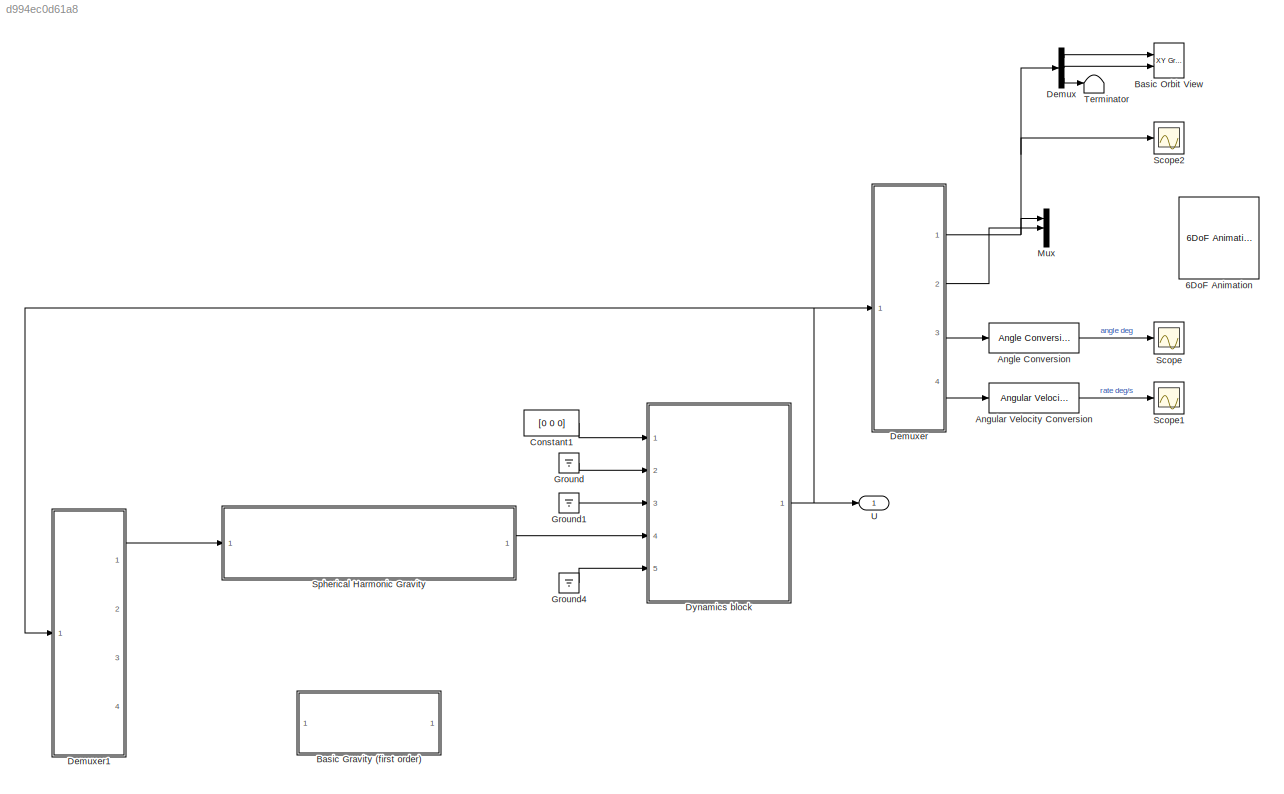
MODEL slx_d994ec0d61a8
KIND model
CONFIG AbsTol = auto
CONFIG EnableMultiTasking = off
CONFIG FixedStep = 10
CONFIG MaxStep = auto
CONFIG MinStep = auto
CONFIG RelTol = 1e-3
CONFIG SampleTimeConstraint = Unconstrained
CONFIG Solver = VariableStepAuto
CONFIG SolverName = VariableStepAuto
CONFIG StartTime = 0.0
CONFIG StopTime = 50000
WORKSPACE source: mxarray member
WORKSPACE Inertia = 1
BLOCK [Reference] 6DoF Animation  REF=aerolibanim/6DoF Animation
  Commented = on
  Ports = [2]
  SourceBlock = aerolibanim/6DoF Animation
  SourceProductBaseCode = AE
  SourceProductName = Aerospace Blockset
  SourceType = 6DoF_Animation
BLOCK [Reference] Angle Conversion  REF=aerolibconvert2/Angle Conversion
  Ports = [1, 1]
  SourceBlock = aerolibconvert2/Angle Conversion
  SourceProductBaseCode = AE
  SourceProductName = Aerospace Blockset
  SourceType = Angle Conversion
BLOCK [Reference] Angular Velocity Conversion  REF=aerolibconvert2/Angular Velocity
Conversion
  Ports = [1, 1]
  SourceBlock = aerolibconvert2/Angular Velocity\nConversion
  SourceProductBaseCode = AE
  SourceProductName = Aerospace Blockset
  SourceType = Angular Velocity Conversion
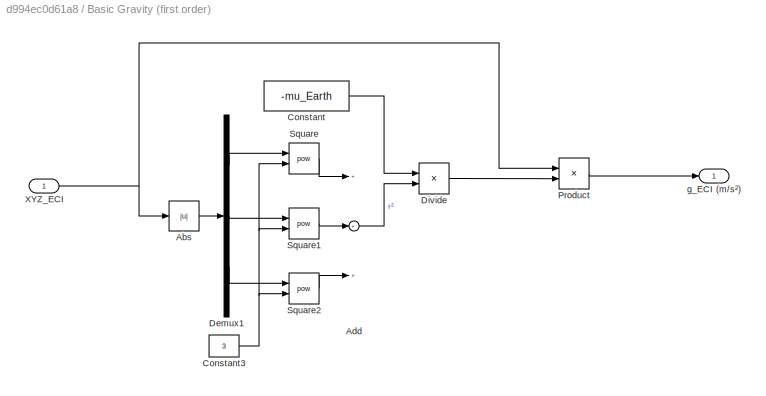
BLOCK [SubSystem] Basic Gravity (first order)
  Commented = on
  Ports = [1, 1]
  RequestExecContextInheritance = off
BLOCK [Abs] Basic Gravity (first order)/Abs
  SaturateOnIntegerOverflow = off
BLOCK [Sum] Basic Gravity (first order)/Add
  InputSameDT = off
  Inputs = +++
  OutDataTypeStr = Inherit: Inherit via internal rule
  Ports = [3, 1]
  SaturateOnIntegerOverflow = off
BLOCK [Constant] Basic Gravity (first order)/Constant
  Value = -mu_Earth
BLOCK [Constant] Basic Gravity (first order)/Constant3
  Value = 3
BLOCK [Demux] Basic Gravity (first order)/Demux1
  DisplayOption = bar
  Outputs = 3
  Ports = [1, 3]
BLOCK [Product] Basic Gravity (first order)/Divide
  InputSameDT = off
  Inputs = */
  OutDataTypeStr = Inherit: Inherit via internal rule
  Ports = [2, 1]
  RndMeth = Floor
  SaturateOnIntegerOverflow = off
BLOCK [Product] Basic Gravity (first order)/Product
  InputSameDT = off
  OutDataTypeStr = Inherit: Inherit via internal rule
  Ports = [2, 1]
  RndMeth = Floor
  SaturateOnIntegerOverflow = off
BLOCK [Math] Basic Gravity (first order)/Square
  Operator = pow
  Ports = [2, 1]
  SignedPower = off
BLOCK [Math] Basic Gravity (first order)/Square1
  Operator = pow
  Ports = [2, 1]
  SignedPower = off
BLOCK [Math] Basic Gravity (first order)/Square2
  Operator = pow
  Ports = [2, 1]
  SignedPower = off
BLOCK [Inport] Basic Gravity (first order)/XYZ_ECI
  IconDisplay = Port number
BLOCK [Outport] Basic Gravity (first order)/g_ECI (m//s²)
  IconDisplay = Port number
BLOCK [Reference] Basic Orbit View  REF=simulink/Sinks/XY Graph
  Ports = [2]
  SourceBlock = simulink/Sinks/XY Graph
  SourceProductBaseCode = SL
  SourceProductName = Simulink
  SourceType = XY scope.
BLOCK [Constant] Constant1
  Value = [0 0 0]
BLOCK [Demux] Demux
  DisplayOption = bar
  Outputs = 3
  Ports = [1, 3]
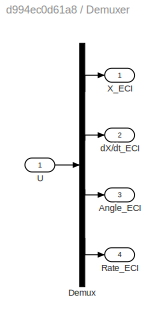
BLOCK [SubSystem] Demuxer
  Ports = [1, 4]
  RequestExecContextInheritance = off
BLOCK [Outport] Demuxer/Angle_ECI
  IconDisplay = Port number
  Port = 3
BLOCK [Demux] Demuxer/Demux
  DisplayOption = bar
  Ports = [1, 4]
BLOCK [Outport] Demuxer/Rate_ECI
  IconDisplay = Port number
  Port = 4
BLOCK [Inport] Demuxer/U
  IconDisplay = Port number
BLOCK [Outport] Demuxer/X_ECI
  IconDisplay = Port number
BLOCK [Outport] Demuxer/dX//dt_ECI
  IconDisplay = Port number
  Port = 2
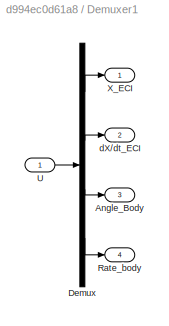
BLOCK [SubSystem] Demuxer1
  Ports = [1, 4]
  RequestExecContextInheritance = off
BLOCK [Outport] Demuxer1/Angle_Body
  IconDisplay = Port number
  Port = 3
BLOCK [Demux] Demuxer1/Demux
  DisplayOption = bar
  Ports = [1, 4]
BLOCK [Outport] Demuxer1/Rate_body
  IconDisplay = Port number
  Port = 4
BLOCK [Inport] Demuxer1/U
  IconDisplay = Port number
BLOCK [Outport] Demuxer1/X_ECI
  IconDisplay = Port number
BLOCK [Outport] Demuxer1/dX//dt_ECI
  IconDisplay = Port number
  Port = 2
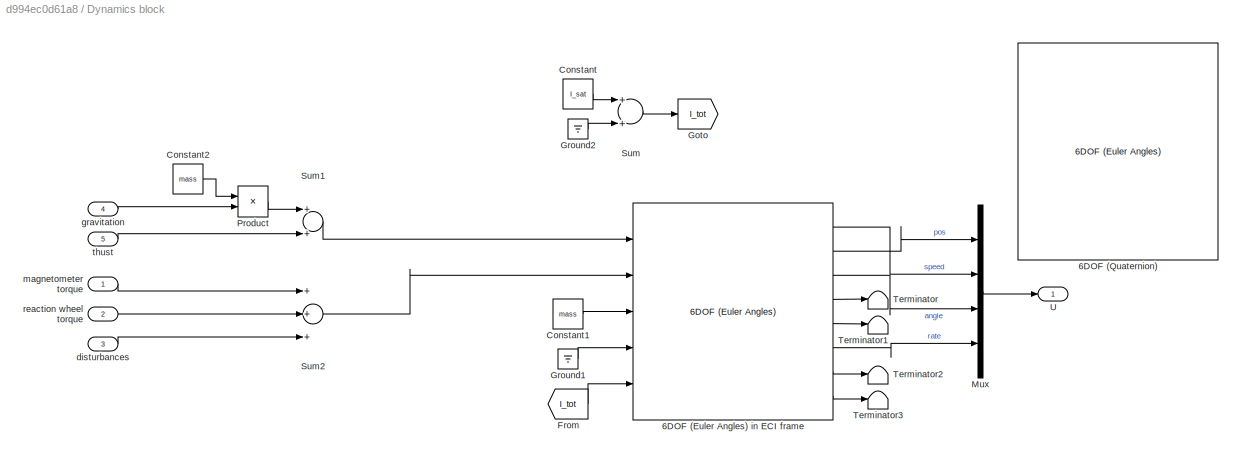
BLOCK [SubSystem] Dynamics block
  Ports = [5, 1]
  RequestExecContextInheritance = off
BLOCK [Reference] Dynamics block/6DOF (Euler Angles) in ECI frame  REF=shared6dof/6DOF (Euler Angles)
  Ports = [5, 8]
  SourceBlock = shared6dof/6DOF (Euler Angles)
  SourceProductBaseCode = AE
  SourceProductName = Aerospace Blockset
  SourceType = 6DOF EoM (Body Axis)
BLOCK [Reference] Dynamics block/6DOF (Quaternion)  REF=shared6dof/6DOF (Euler Angles)
  Commented = on
  Ports = [5, 8]
  SourceBlock = shared6dof/6DOF (Euler Angles)
  SourceProductBaseCode = AE
  SourceProductName = Aerospace Blockset
  SourceType = 6DOF EoM (Body Axis)
BLOCK [Constant] Dynamics block/Constant
  Value = I_sat
BLOCK [Constant] Dynamics block/Constant1
  Value = mass
BLOCK [Constant] Dynamics block/Constant2
  Value = mass
BLOCK [From] Dynamics block/From
  GotoTag = I_tot
BLOCK [Goto] Dynamics block/Goto
  GotoTag = I_tot
BLOCK [Ground] Dynamics block/Ground1
BLOCK [Ground] Dynamics block/Ground2
BLOCK [Mux] Dynamics block/Mux
  DisplayOption = bar
  Ports = [4, 1]
BLOCK [Product] Dynamics block/Product
  InputSameDT = off
  OutDataTypeStr = Inherit: Inherit via internal rule
  Ports = [2, 1]
  RndMeth = Floor
  SaturateOnIntegerOverflow = off
BLOCK [Sum] Dynamics block/Sum
  InputSameDT = off
  OutDataTypeStr = Inherit: Inherit via internal rule
  Ports = [2, 1]
  SaturateOnIntegerOverflow = off
BLOCK [Sum] Dynamics block/Sum1
  InputSameDT = off
  OutDataTypeStr = Inherit: Inherit via internal rule
  Ports = [2, 1]
  SaturateOnIntegerOverflow = off
BLOCK [Sum] Dynamics block/Sum2
  InputSameDT = off
  Inputs = +++
  OutDataTypeStr = Inherit: Inherit via internal rule
  Ports = [3, 1]
  SaturateOnIntegerOverflow = off
BLOCK [Terminator] Dynamics block/Terminator
BLOCK [Terminator] Dynamics block/Terminator1
BLOCK [Terminator] Dynamics block/Terminator2
BLOCK [Terminator] Dynamics block/Terminator3
BLOCK [Outport] Dynamics block/U
  IconDisplay = Port number
  PortDimensions = 12
BLOCK [Inport] Dynamics block/disturbances
  IconDisplay = Port number
  Port = 3
  PortDimensions = 3
BLOCK [Inport] Dynamics block/gravitation
  IconDisplay = Port number
  Port = 4
  PortDimensions = 3
BLOCK [Inport] Dynamics block/magnetometer torque
  IconDisplay = Port number
BLOCK [Inport] Dynamics block/reaction wheel torque
  IconDisplay = Port number
  Port = 2
  PortDimensions = 3
BLOCK [Inport] Dynamics block/thust
  IconDisplay = Port number
  Port = 5
  PortDimensions = 3
BLOCK [Ground] Ground
BLOCK [Ground] Ground1
BLOCK [Ground] Ground4
BLOCK [Mux] Mux
  DisplayOption = bar
  Inputs = 3
  Ports = [3, 1]
BLOCK [Scope] Scope
  Floating = off
  NumInputPorts = 1
  Ports = [1]
  ScopeSpecificationString = Simulink.scopes.TimeScopeBlockCfg('CurrentConfiguration', extmgr.ConfigurationSet(extmgr.Configuration('Core','General UI',true),extmgr.Configuration('Core','Source UI',true),extmgr.Configuration('Sources','WiredSimulink',true),extmgr.Configuration('Visuals','Time Domain',true,'SerializedDisplays',{struct('MinYLimReal','-224.5009','MaxYLimReal','224.27998','YLabelReal','','MinYLimMag',' 0.00000','...<+1394ch>
BLOCK [Scope] Scope1
  Floating = off
  NumInputPorts = 1
  Ports = [1]
  ScopeSpecificationString = Simulink.scopes.TimeScopeBlockCfg('CurrentConfiguration', extmgr.ConfigurationSet(extmgr.Configuration('Core','General UI',true),extmgr.Configuration('Core','Source UI',true),extmgr.Configuration('Sources','WiredSimulink',true,'DataLoggingVariableName','ScopeData1'),extmgr.Configuration('Visuals','Time Domain',true,'SerializedDisplays',{struct('MinYLimReal','-71.61972','MaxYLimReal','644.57752','Y...<+1436ch>
BLOCK [Scope] Scope2
  Floating = off
  NumInputPorts = 1
  Ports = [1]
  ScopeSpecificationString = Simulink.scopes.TimeScopeBlockCfg('CurrentConfiguration', extmgr.ConfigurationSet(extmgr.Configuration('Core','General UI',true),extmgr.Configuration('Core','Source UI',true),extmgr.Configuration('Sources','WiredSimulink',true,'DataLoggingVariableName','ScopeData1'),extmgr.Configuration('Visuals','Time Domain',true,'SerializedDisplays',{struct('MinYLimReal','-10591820.73697','MaxYLimReal','6143206...<+1643ch>
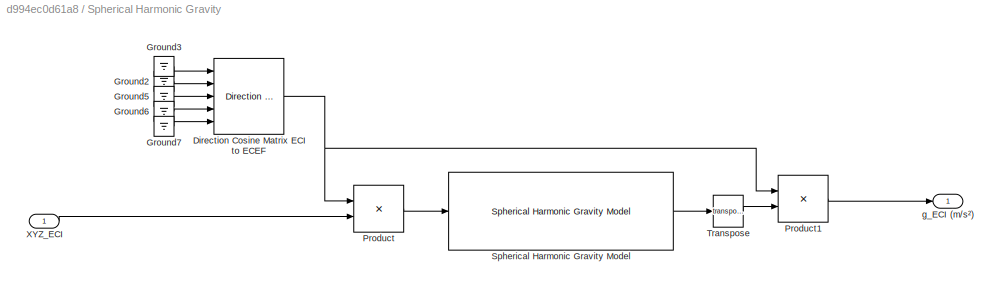
BLOCK [SubSystem] Spherical Harmonic Gravity
  Ports = [1, 1]
  RequestExecContextInheritance = off
BLOCK [Reference] Spherical Harmonic Gravity/Direction Cosine Matrix ECI to ECEF  REF=aerolibtransform2/Direction Cosine Matrix
ECI to ECEF
  AttributesFormatString = %<red>
  Ports = [5, 1]
  SourceBlock = aerolibtransform2/Direction Cosine Matrix\nECI to ECEF
  SourceProductBaseCode = AE
  SourceProductName = Aerospace Blockset
  SourceType = DCMECItoECEF
BLOCK [Ground] Spherical Harmonic Gravity/Ground2
BLOCK [Ground] Spherical Harmonic Gravity/Ground3
BLOCK [Ground] Spherical Harmonic Gravity/Ground5
BLOCK [Ground] Spherical Harmonic Gravity/Ground6
BLOCK [Ground] Spherical Harmonic Gravity/Ground7
BLOCK [Product] Spherical Harmonic Gravity/Product
  InputSameDT = off
  Multiplication = Matrix(*)
  OutDataTypeStr = Inherit: Inherit via internal rule
  Ports = [2, 1]
  RndMeth = Floor
  SaturateOnIntegerOverflow = off
BLOCK [Product] Spherical Harmonic Gravity/Product1
  InputSameDT = off
  Inputs = /*
  Multiplication = Matrix(*)
  OutDataTypeStr = Inherit: Inherit via internal rule
  Ports = [2, 1]
  RndMeth = Floor
  SaturateOnIntegerOverflow = off
BLOCK [Reference] Spherical Harmonic Gravity/Spherical Harmonic Gravity Model  REF=aerolibgravity2/Spherical Harmonic Gravity Model
  Ports = [1, 1]
  SourceBlock = aerolibgravity2/Spherical Harmonic Gravity Model
  SourceProductBaseCode = AE
  SourceProductName = Aerospace Blockset
  SourceType = Spherical Harmonic Gravity Model
BLOCK [Math] Spherical Harmonic Gravity/Transpose
  Operator = transpose
  Ports = [1, 1]
  SignedPower = off
BLOCK [Inport] Spherical Harmonic Gravity/XYZ_ECI
  IconDisplay = Port number
BLOCK [Outport] Spherical Harmonic Gravity/g_ECI (m//s²)
  IconDisplay = Port number
BLOCK [Terminator] Terminator
BLOCK [Outport] U
  IconDisplay = Port number
LINE Angle Conversion:1 -> Scope:1
LINE Angular Velocity Conversion:1 -> Scope1:1
LINE Basic Gravity (first order)/Abs:1 -> Basic Gravity (first order)/Demux1:1
LINE Basic Gravity (first order)/Add:1 -> Basic Gravity (first order)/Divide:2
NET Basic Gravity (first order)/Constant3:1 -> Basic Gravity (first order)/Square1:2, Basic Gravity (first order)/Square2:2, Basic Gravity (first order)/Square:2
LINE Basic Gravity (first order)/Constant:1 -> Basic Gravity (first order)/Divide:1
LINE Basic Gravity (first order)/Demux1:1 -> Basic Gravity (first order)/Square:1
LINE Basic Gravity (first order)/Demux1:2 -> Basic Gravity (first order)/Square1:1
LINE Basic Gravity (first order)/Demux1:3 -> Basic Gravity (first order)/Square2:1
LINE Basic Gravity (first order)/Divide:1 -> Basic Gravity (first order)/Product:2
LINE Basic Gravity (first order)/Product:1 -> Basic Gravity (first order)/g_ECI (m//s²):1
LINE Basic Gravity (first order)/Square1:1 -> Basic Gravity (first order)/Add:2
LINE Basic Gravity (first order)/Square2:1 -> Basic Gravity (first order)/Add:3
LINE Basic Gravity (first order)/Square:1 -> Basic Gravity (first order)/Add:1
NET Basic Gravity (first order)/XYZ_ECI:1 -> Basic Gravity (first order)/Abs:1, Basic Gravity (first order)/Product:1
LINE Constant1:1 -> Dynamics block:1
LINE Demux:1 -> Basic Orbit View:1
LINE Demux:2 -> Basic Orbit View:2
LINE Demux:3 -> Terminator:1
LINE Demuxer/Demux:1 -> Demuxer/X_ECI:1
LINE Demuxer/Demux:2 -> Demuxer/dX//dt_ECI:1
LINE Demuxer/Demux:3 -> Demuxer/Angle_ECI:1
LINE Demuxer/Demux:4 -> Demuxer/Rate_ECI:1
LINE Demuxer/U:1 -> Demuxer/Demux:1
LINE Demuxer1/Demux:1 -> Demuxer1/X_ECI:1
LINE Demuxer1/Demux:2 -> Demuxer1/dX//dt_ECI:1
LINE Demuxer1/Demux:3 -> Demuxer1/Angle_Body:1
LINE Demuxer1/Demux:4 -> Demuxer1/Rate_body:1
LINE Demuxer1/U:1 -> Demuxer1/Demux:1
LINE Demuxer1:1 -> Spherical Harmonic Gravity:1
NET Demuxer:1 -> Demux:1, Mux:1, Scope2:1
LINE Demuxer:2 -> Mux:2
LINE Demuxer:3 -> Angle Conversion:1
LINE Demuxer:4 -> Angular Velocity Conversion:1
LINE Dynamics block/6DOF (Euler Angles) in ECI frame:1 -> Dynamics block/Mux:2
LINE Dynamics block/6DOF (Euler Angles) in ECI frame:2 -> Dynamics block/Mux:1
LINE Dynamics block/6DOF (Euler Angles) in ECI frame:3 -> Dynamics block/Mux:3
LINE Dynamics block/6DOF (Euler Angles) in ECI frame:4 -> Dynamics block/Terminator:1
LINE Dynamics block/6DOF (Euler Angles) in ECI frame:5 -> Dynamics block/Terminator1:1
LINE Dynamics block/6DOF (Euler Angles) in ECI frame:6 -> Dynamics block/Mux:4
LINE Dynamics block/6DOF (Euler Angles) in ECI frame:7 -> Dynamics block/Terminator2:1
LINE Dynamics block/6DOF (Euler Angles) in ECI frame:8 -> Dynamics block/Terminator3:1
LINE Dynamics block/Constant1:1 -> Dynamics block/6DOF (Euler Angles) in ECI frame:3
LINE Dynamics block/Constant2:1 -> Dynamics block/Product:1
LINE Dynamics block/Constant:1 -> Dynamics block/Sum:1
LINE Dynamics block/From:1 -> Dynamics block/6DOF (Euler Angles) in ECI frame:5
LINE Dynamics block/Ground1:1 -> Dynamics block/6DOF (Euler Angles) in ECI frame:4
LINE Dynamics block/Ground2:1 -> Dynamics block/Sum:2
LINE Dynamics block/Mux:1 -> Dynamics block/U:1
LINE Dynamics block/Product:1 -> Dynamics block/Sum1:1
LINE Dynamics block/Sum1:1 -> Dynamics block/6DOF (Euler Angles) in ECI frame:1
LINE Dynamics block/Sum2:1 -> Dynamics block/6DOF (Euler Angles) in ECI frame:2
LINE Dynamics block/Sum:1 -> Dynamics block/Goto:1
LINE Dynamics block/disturbances:1 -> Dynamics block/Sum2:3
LINE Dynamics block/gravitation:1 -> Dynamics block/Product:2
LINE Dynamics block/magnetometer torque:1 -> Dynamics block/Sum2:1
LINE Dynamics block/reaction wheel torque:1 -> Dynamics block/Sum2:2
LINE Dynamics block/thust:1 -> Dynamics block/Sum1:2
NET Dynamics block:1 -> Demuxer1:1, Demuxer:1, U:1
LINE Ground1:1 -> Dynamics block:3
LINE Ground4:1 -> Dynamics block:5
LINE Ground:1 -> Dynamics block:2
NET Spherical Harmonic Gravity/Direction Cosine Matrix ECI to ECEF:1 -> Spherical Harmonic Gravity/Product1:1, Spherical Harmonic Gravity/Product:1
LINE Spherical Harmonic Gravity/Ground2:1 -> Spherical Harmonic Gravity/Direction Cosine Matrix ECI to ECEF:2
LINE Spherical Harmonic Gravity/Ground3:1 -> Spherical Harmonic Gravity/Direction Cosine Matrix ECI to ECEF:1
LINE Spherical Harmonic Gravity/Ground5:1 -> Spherical Harmonic Gravity/Direction Cosine Matrix ECI to ECEF:3
LINE Spherical Harmonic Gravity/Ground6:1 -> Spherical Harmonic Gravity/Direction Cosine Matrix ECI to ECEF:4
LINE Spherical Harmonic Gravity/Ground7:1 -> Spherical Harmonic Gravity/Direction Cosine Matrix ECI to ECEF:5
LINE Spherical Harmonic Gravity/Product1:1 -> Spherical Harmonic Gravity/g_ECI (m//s²):1
LINE Spherical Harmonic Gravity/Product:1 -> Spherical Harmonic Gravity/Spherical Harmonic Gravity Model:1
LINE Spherical Harmonic Gravity/Spherical Harmonic Gravity Model:1 -> Spherical Harmonic Gravity/Transpose:1
LINE Spherical Harmonic Gravity/Transpose:1 -> Spherical Harmonic Gravity/Product1:2
LINE Spherical Harmonic Gravity/XYZ_ECI:1 -> Spherical Harmonic Gravity/Product:2
LINE Spherical Harmonic Gravity:1 -> Dynamics block:4
note: NET lines group one-source signal fan-out (src -> all destinations, sorted); 1:1 wires keep LINE
